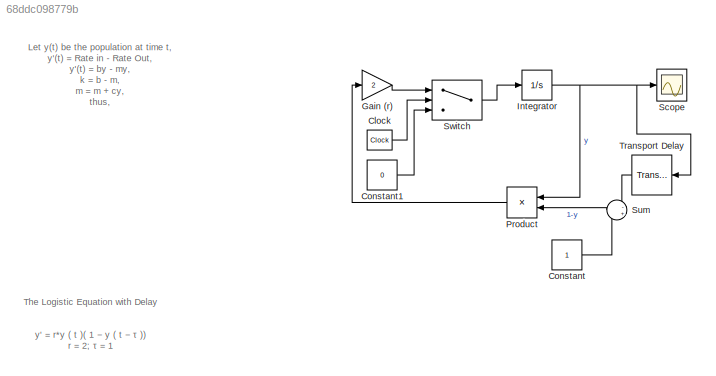
MODEL slx_68ddc098779b
KIND model
CONFIG AbsTol = auto
CONFIG EnableMultiTasking = off
CONFIG FixedStep = auto
CONFIG MaxStep = auto
CONFIG MinStep = auto
CONFIG RelTol = 1e-6
CONFIG SampleTimeConstraint = Unconstrained
CONFIG SolverName = ode45
CONFIG StartTime = 0.0
CONFIG StopTime = 30
BLOCK [Clock] Clock
BLOCK [Constant] Constant
BLOCK [Constant] Constant1
  Value = 0
BLOCK [Gain] Gain (r)
  Gain = 2
BLOCK [Integrator] Integrator
  InitialCondition = 2
  Ports = [1, 1]
BLOCK [Product] Product
  NameLocation = top
  Ports = [2, 1]
BLOCK [Scope] Scope
  Floating = off
  NumInputPorts = 1
  Ports = [1]
  ScopeSpecificationString = Simulink.scopes.TimeScopeBlockCfg('CurrentConfiguration', extmgr.ConfigurationSet(extmgr.Configuration('Core','General UI',true),extmgr.Configuration('Core','Source UI',true),extmgr.Configuration('Sources','WiredSimulink',true),extmgr.Configuration('Visuals','Time Domain',true,'SerializedDisplays',{struct('MinYLimReal','4.58672','MaxYLimReal','8.6668','YLabelReal','','MinYLimMag','4.58672','MaxYLi...<+1390ch>
BLOCK [Sum] Sum
  Inputs = -+
  NameLocation = top
  Ports = [2, 1]
BLOCK [Switch] Switch
  InputSameDT = off
  SaturateOnIntegerOverflow = off
  Threshold = 1
BLOCK [TransportDelay] Transport Delay
  NameLocation = top
  Ports = [1, 1]
ANNOTATION (root): y' = r*y ( t )( 1 − y ( t − τ )) r = 2; τ = 1
ANNOTATION (root): Let y(t) be the population at time t, y'(t) = Rate in - Rate Out, y'(t) = by - my, k = b - m, m = m + cy, thus, y'(t) = ky - cy^2, We can model the logistic equation y'(t) = ry(t) (1 - y(t)) r = 1, y(0) = 0.1
ANNOTATION (root): The Logistic Equation with Delay
LINE Clock:1 -> Switch:2
LINE Constant1:1 -> Switch:3
LINE Constant:1 -> Sum:2
LINE Gain (r):1 -> Switch:1
NET Integrator:1 -> Product:1, Scope:1, Transport Delay:1
LINE Product:1 -> Gain (r):1
LINE Sum:1 -> Product:2
LINE Switch:1 -> Integrator:1
LINE Transport Delay:1 -> Sum:1
note: NET lines group one-source signal fan-out (src -> all destinations, sorted); 1:1 wires keep LINE
